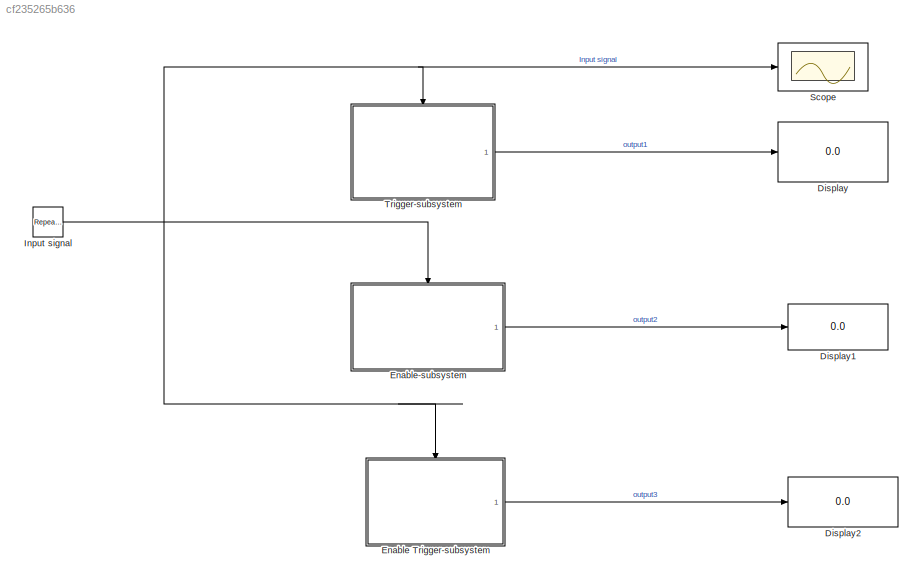
MODEL slx_cf235265b636
KIND model
CONFIG AbsTol = auto
CONFIG EnableMultiTasking = off
CONFIG FixedStep = auto
CONFIG MaxStep = auto
CONFIG MinStep = auto
CONFIG RelTol = 1e-3
CONFIG SampleTimeConstraint = Unconstrained
CONFIG Solver = VariableStepAuto
CONFIG SolverName = VariableStepAuto
CONFIG StartTime = 0.0
CONFIG StopTime = 10.0
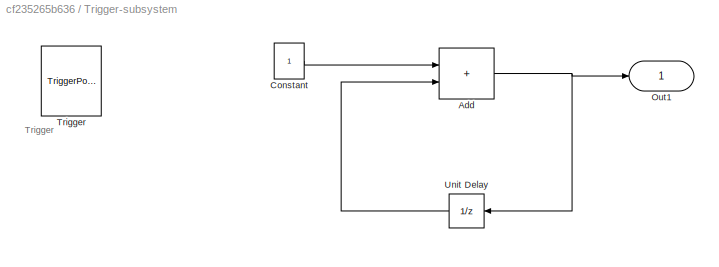
BLOCK [SubSystem]  Trigger-subsystem
  Ports = [0, 1, 0, 1]
  RequestExecContextInheritance = off
BLOCK [Sum]  Trigger-subsystem/Add
  IconShape = rectangular
  Ports = [2, 1]
BLOCK [Constant]  Trigger-subsystem/Constant
BLOCK [Outport]  Trigger-subsystem/Out1
BLOCK [TriggerPort]  Trigger-subsystem/Trigger
  PortDimensions = 1
  Ports = []
  StatesWhenEnabling = held
  VariantControl = Variant
BLOCK [UnitDelay]  Trigger-subsystem/Unit Delay
  HasFrameUpgradeWarning = on
  SampleTime = -1
BLOCK [Display] Display
  Decimation = 1
  Ports = [1]
BLOCK [Display] Display1
  Decimation = 1
  Ports = [1]
BLOCK [Display] Display2
  Decimation = 1
  Ports = [1]
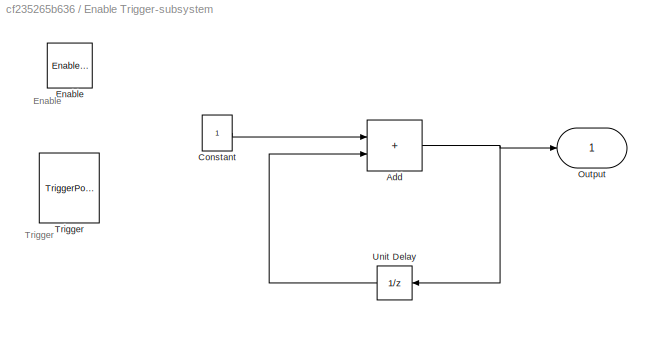
BLOCK [SubSystem] Enable Trigger-subsystem
  Ports = [0, 1, 1, 1]
  RequestExecContextInheritance = off
BLOCK [Sum] Enable Trigger-subsystem/Add
  IconShape = rectangular
  Ports = [2, 1]
BLOCK [Constant] Enable Trigger-subsystem/Constant
BLOCK [EnablePort] Enable Trigger-subsystem/Enable
  Ports = []
BLOCK [Outport] Enable Trigger-subsystem/Output
BLOCK [TriggerPort] Enable Trigger-subsystem/Trigger
  PortDimensions = 1
  Ports = []
  StatesWhenEnabling = held
  VariantControl = Variant
BLOCK [UnitDelay] Enable Trigger-subsystem/Unit Delay
  HasFrameUpgradeWarning = on
  SampleTime = -1
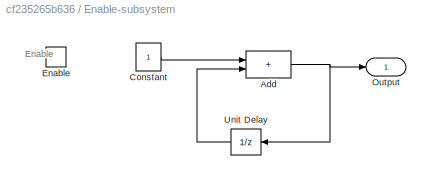
BLOCK [SubSystem] Enable-subsystem
  Ports = [0, 1, 1]
  RequestExecContextInheritance = off
BLOCK [Sum] Enable-subsystem/Add
  IconShape = rectangular
  Ports = [2, 1]
BLOCK [Constant] Enable-subsystem/Constant
BLOCK [EnablePort] Enable-subsystem/Enable
  Ports = []
BLOCK [Outport] Enable-subsystem/Output
BLOCK [UnitDelay] Enable-subsystem/Unit Delay
  HasFrameUpgradeWarning = on
  SampleTime = -1
BLOCK [Reference] Input signal  REF=simulink/Sources/Repeating
Sequence
Stair
  Ports = [0, 1]
  SourceBlock = simulink/Sources/Repeating\nSequence\nStair
  SourceType = Repeating Sequence Stair
BLOCK [Scope] Scope
  Floating = off
  NumInputPorts = 1
  Ports = [1]
  ScopeSpecificationString = Simulink.scopes.TimeScopeBlockCfg('CurrentConfiguration', extmgr.ConfigurationSet(extmgr.Configuration('Core','General UI',true),extmgr.Configuration('Core','Source UI',true),extmgr.Configuration('Sources','WiredSimulink',true),extmgr.Configuration('Visuals','Time Domain',true,'SerializedDisplays',{struct('MinYLimReal','-0.125','MaxYLimReal','1.125','YLabelReal','','MinYLimMag','0.00000','MaxYLimM...<+1320ch>
ANNOTATION  Trigger-subsystem: Trigger
ANNOTATION Enable Trigger-subsystem: Enable
ANNOTATION Enable Trigger-subsystem: Trigger
ANNOTATION Enable-subsystem: Enable
NET  Trigger-subsystem/Add:1 ->  Trigger-subsystem/Out1:1,  Trigger-subsystem/Unit Delay:1
LINE  Trigger-subsystem/Constant:1 ->  Trigger-subsystem/Add:1
LINE  Trigger-subsystem/Unit Delay:1 ->  Trigger-subsystem/Add:2
LINE  Trigger-subsystem:1 -> Display:1
NET Enable Trigger-subsystem/Add:1 -> Enable Trigger-subsystem/Output:1, Enable Trigger-subsystem/Unit Delay:1
LINE Enable Trigger-subsystem/Constant:1 -> Enable Trigger-subsystem/Add:1
LINE Enable Trigger-subsystem/Unit Delay:1 -> Enable Trigger-subsystem/Add:2
LINE Enable Trigger-subsystem:1 -> Display2:1
NET Enable-subsystem/Add:1 -> Enable-subsystem/Output:1, Enable-subsystem/Unit Delay:1
LINE Enable-subsystem/Constant:1 -> Enable-subsystem/Add:1
LINE Enable-subsystem/Unit Delay:1 -> Enable-subsystem/Add:2
LINE Enable-subsystem:1 -> Display1:1
NET Input signal:1 ->  Trigger-subsystem:trigger, Enable Trigger-subsystem:enable, Enable Trigger-subsystem:trigger, Enable-subsystem:enable, Scope:1
note: NET lines group one-source signal fan-out (src -> all destinations, sorted); 1:1 wires keep LINE
